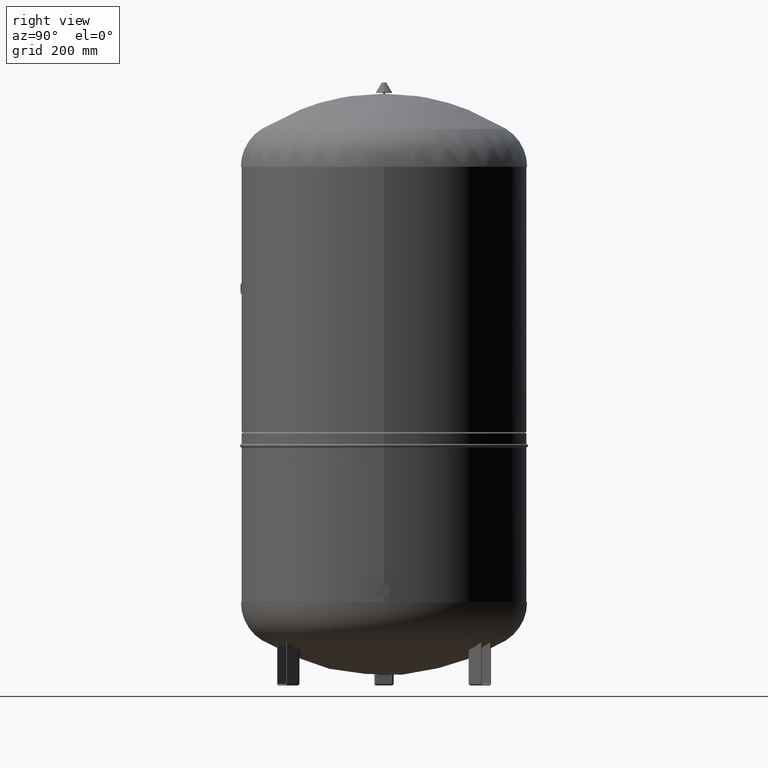
[diagram: clean part render]
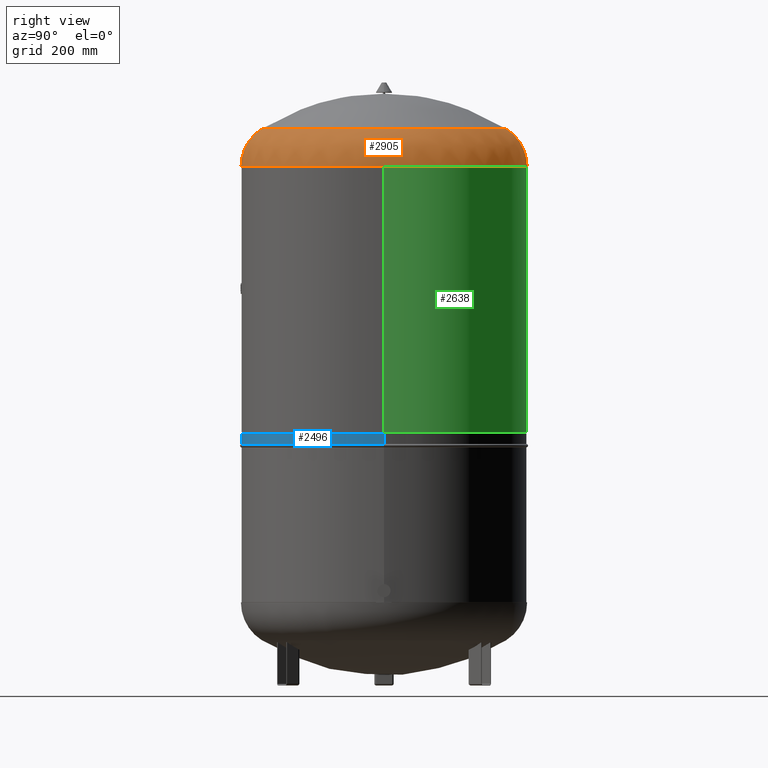
[diagram: same view with three faces highlighted in distinct colors, each labeled with its STEP entity id]
A machine part, right view with three faces highlighted in distinct colors.
Their STEP definitions:

[orange] entity #2905 — the highlighted face is a freeform B-spline surface patch.
#2788=CARTESIAN_POINT('',(370.0,1.062956E-014,1341.206120388130600));
#2789=VERTEX_POINT('',#2788);
#2796=CARTESIAN_POINT('',(0.0,-370.000000000000060,1341.206120388130600));
#2797=VERTEX_POINT('',#2796);
#2798=CARTESIAN_POINT('',(0.0,-3.468087E-014,1341.206120388130600));
#2799=DIRECTION('',(0.0,0.0,1.0));
#2800=DIRECTION('',(-1.0,0.0,0.0));
#2801=AXIS2_PLACEMENT_3D('',#2798,#2799,#2800);
#2802=CIRCLE('',#2801,370.0);
#2803=EDGE_CURVE('',#2797,#2789,#2802,.T.);
#2815=CARTESIAN_POINT('',(-1.702203E-014,139.000000000000060,1341.206120388130300));
#2816=CARTESIAN_POINT('',(-1.702203E-014,139.000000000000060,1456.706120388130300));
#2817=CARTESIAN_POINT('',(-3.116623E-014,254.500000000000000,1456.706120388130300));
#2818=CARTESIAN_POINT('',(-4.531044E-014,370.0,1456.706120388130300));
#2819=CARTESIAN_POINT('',(-4.531044E-014,369.999999999999940,1341.206120388130300));
#2820=CARTESIAN_POINT('',(-139.000000000000090,139.0,1341.206120388130300));
#2821=CARTESIAN_POINT('',(-139.000000000000060,139.0,1456.706120388130300));
#2822=CARTESIAN_POINT('',(-254.500000000000000,254.499999999999860,1456.706120388130300));
#2823=CARTESIAN_POINT('',(-370.0,369.999999999999890,1456.706120388130300));
#2824=CARTESIAN_POINT('',(-370.0,369.999999999999890,1341.206120388130300));
#2825=CARTESIAN_POINT('',(-139.000000000000090,-5.170290E-014,1341.206120388130300));
#2826=CARTESIAN_POINT('',(-139.000000000000060,-3.048590E-014,1456.706120388130300));
#2827=CARTESIAN_POINT('',(-254.500000000000000,-4.463010E-014,1456.706120388130300));
#2828=CARTESIAN_POINT('',(-370.0,-5.877430E-014,1456.706120388130300));
#2829=CARTESIAN_POINT('',(-370.0,-7.999131E-014,1341.206120388130300));
#2830=CARTESIAN_POINT('',(-139.000000000000030,-139.000000000000110,1341.206120388130300));
#2831=CARTESIAN_POINT('',(-139.0,-139.000000000000060,1456.706120388130300));
#2832=CARTESIAN_POINT('',(-254.499999999999910,-254.500000000000000,1456.706120388130300));
#2833=CARTESIAN_POINT('',(-369.999999999999890,-370.0,1456.706120388130300));
#2834=CARTESIAN_POINT('',(-369.999999999999890,-370.0,1341.206120388130300));
#2835=CARTESIAN_POINT('',(1.702203E-014,-139.000000000000110,1341.206120388130300));
#2836=CARTESIAN_POINT('',(1.702203E-014,-139.000000000000060,1456.706120388130300));
#2837=CARTESIAN_POINT('',(3.116623E-014,-254.500000000000000,1456.706120388130300));
#2838=CARTESIAN_POINT('',(4.531044E-014,-370.0,1456.706120388130300));
#2839=CARTESIAN_POINT('',(4.531044E-014,-370.000000000000060,1341.206120388130300));
#2840=CARTESIAN_POINT('',(139.000000000000090,-139.000000000000090,1341.206120388130300));
#2841=CARTESIAN_POINT('',(139.000000000000060,-139.000000000000030,1456.706120388130300));
#2842=CARTESIAN_POINT('',(254.500000000000000,-254.499999999999910,1456.706120388130300));
#2843=CARTESIAN_POINT('',(370.0,-369.999999999999890,1456.706120388130300));
#2844=CARTESIAN_POINT('',(370.0,-369.999999999999890,1341.206120388130300));
#2845=CARTESIAN_POINT('',(139.000000000000090,-1.765884E-014,1341.206120388130300));
#2846=CARTESIAN_POINT('',(139.000000000000060,3.558161E-015,1456.706120388130300));
#2847=CARTESIAN_POINT('',(254.500000000000000,1.770236E-014,1456.706120388130300));
#2848=CARTESIAN_POINT('',(370.0,3.184657E-014,1456.706120388130300));
#2849=CARTESIAN_POINT('',(370.0,1.062956E-014,1341.206120388130300));
#2850=CARTESIAN_POINT('',(139.000000000000030,139.000000000000030,1341.206120388130300));
#2851=CARTESIAN_POINT('',(139.0,139.000000000000030,1456.706120388130300));
#2852=CARTESIAN_POINT('',(254.499999999999910,254.500000000000000,1456.706120388130300));
#2853=CARTESIAN_POINT('',(369.999999999999890,370.0,1456.706120388130300));
#2854=CARTESIAN_POINT('',(369.999999999999890,369.999999999999890,1341.206120388130300));
#2855=CARTESIAN_POINT('',(-1.702203E-014,139.000000000000060,1341.206120388130300));
#2856=CARTESIAN_POINT('',(-1.702203E-014,139.000000000000060,1456.706120388130300));
#2857=CARTESIAN_POINT('',(-3.116623E-014,254.500000000000000,1456.706120388130300));
#2858=CARTESIAN_POINT('',(-4.531044E-014,370.0,1456.706120388130300));
#2859=CARTESIAN_POINT('',(-4.531044E-014,369.999999999999940,1341.206120388130300));
#2867=(BOUNDED_SURFACE()B_SPLINE_SURFACE(2,2,((#2815,#2820,#2825,#2830,#2835,#2840,#2845,#2850,#2855),(#2816,#2821,#2826,#2831,#2836,#2841,#2846,#2851,#2856),(#2817,#2822,#2827,#2832,#2837,#2842,#2847,#2852,#2857),(#2818,#2823,#2828,#2833,#2838,#2843,#2848,#2853,#2858),(#2819,#2824,#2829,#2834,#2839,#2844,#2849,#2854,#2859)),.UNSPECIFIED.,.F.,.T.,.U.)B_SPLINE_SURFACE_WITH_KNOTS((3,2,3),(3,2,2,2,3),(-3.141592653589794,-1.570796326794897,5.884666E-016),(0.0,1.570796326794897,3.141592653589793,4.712388980384690,6.283185307179586),.UNSPECIFIED.)GEOMETRIC_REPRESENTATION_ITEM()RATIONAL_B_SPLINE_SURFACE(((1.0,0.707106781186548,1.0,0.707106781186548,1.0,0.707106781186548,1.0,0.707106781186548,1.0),(0.707106781186545,0.499999999999998,0.707106781186545,0.499999999999998,0.707106781186545,0.499999999999998,0.707106781186545,0.499999999999998,0.707106781186545),(1.0,0.707106781186548,1.0,0.707106781186548,1.0,0.707106781186548,1.0,0.707106781186548,1.0),(0.707106781186545,0.499999999999999,0.707106781186545,0.499999999999999,0.707106781186545,0.499999999999999,0.707106781186545,0.499999999999999,0.707106781186545),(1.0,0.707106781186548,1.0,0.707106781186548,1.0,0.707106781186548,1.0,0.707106781186548,1.0)))REPRESENTATION_ITEM('')SURFACE());
#2868=CARTESIAN_POINT('',(0.0,-315.931034482758610,1439.014494274920500));
#2869=VERTEX_POINT('',#2868);
#2870=CARTESIAN_POINT('',(0.0,-254.500000000000060,1341.206120388130300));
#2871=DIRECTION('',(-1.0,0.0,0.0));
#2872=DIRECTION('',(0.0,-1.0,0.0));
#2873=AXIS2_PLACEMENT_3D('',#2870,#2871,#2872);
#2874=CIRCLE('',#2873,115.500000000000000);
#2875=EDGE_CURVE('',#2797,#2869,#2874,.T.);
#2876=ORIENTED_EDGE('',*,*,#2875,.F.);
#2877=ORIENTED_EDGE('',*,*,#2803,.T.);
#2878=CARTESIAN_POINT('',(-4.531044E-014,369.999999999999940,1341.206120388130300));
#2879=VERTEX_POINT('',#2878);
#2880=CARTESIAN_POINT('',(0.0,-3.468087E-014,1341.206120388130600));
#2881=DIRECTION('',(0.0,0.0,1.0));
#2882=DIRECTION('',(-1.0,0.0,0.0));
#2883=AXIS2_PLACEMENT_3D('',#2880,#2881,#2882);
#2884=CIRCLE('',#2883,370.0);
#2885=EDGE_CURVE('',#2789,#2879,#2884,.T.);
#2886=ORIENTED_EDGE('',*,*,#2885,.T.);
#2887=CARTESIAN_POINT('',(-3.868912E-014,315.931034482758610,1439.014494274920300));
#2888=VERTEX_POINT('',#2887);
#2889=CARTESIAN_POINT('',(-3.116623E-014,254.500000000000000,1341.206120388130300));
#2890=DIRECTION('',(1.0,0.0,0.0));
#2891=DIRECTION('',(0.0,1.0,0.0));
#2892=AXIS2_PLACEMENT_3D('',#2889,#2890,#2891);
#2893=CIRCLE('',#2892,115.500000000000000);
#2894=EDGE_CURVE('',#2879,#2888,#2893,.T.);
#2895=ORIENTED_EDGE('',*,*,#2894,.T.);
#2896=CARTESIAN_POINT('',(0.0,-1.671377E-014,1439.014494274920500));
#2897=DIRECTION('',(0.0,0.0,1.0));
#2898=DIRECTION('',(-1.0,0.0,0.0));
#2899=AXIS2_PLACEMENT_3D('',#2896,#2897,#2898);
#2900=CIRCLE('',#2899,315.931034482758610);
#2901=EDGE_CURVE('',#2869,#2888,#2900,.T.);
#2902=ORIENTED_EDGE('',*,*,#2901,.F.);
#2903=EDGE_LOOP('',(#2876,#2877,#2886,#2895,#2902));
#2904=FACE_OUTER_BOUND('',#2903,.T.);
#2905=ADVANCED_FACE('',(#2904),#2867,.T.);

[blue] entity #2496 — the highlighted cylindrical surface (partial cylindrical patch) has radius 370 mm, axis along (0, 0, 1).
#2430=CARTESIAN_POINT('',(369.999999999999720,0.0,651.500000000000000));
#2431=VERTEX_POINT('',#2430);
#2447=CARTESIAN_POINT('',(-369.999999999999720,-4.531044E-014,651.500000000000000));
#2448=VERTEX_POINT('',#2447);
#2455=CARTESIAN_POINT('',(-8.273070E-017,0.0,651.500000000000000));
#2456=DIRECTION('',(0.0,0.0,1.0));
#2457=DIRECTION('',(1.0,0.0,0.0));
#2458=AXIS2_PLACEMENT_3D('',#2455,#2456,#2457);
#2459=CIRCLE('',#2458,369.999999999999720);
#2460=EDGE_CURVE('',#2448,#2431,#2459,.T.);
#2465=CARTESIAN_POINT('',(-4.030167E-016,0.0,637.950000000000050));
#2466=DIRECTION('',(2.363734E-017,0.0,1.0));
#2467=DIRECTION('',(1.0,0.0,0.0));
#2468=AXIS2_PLACEMENT_3D('',#2465,#2466,#2467);
#2469=CYLINDRICAL_SURFACE('',#2468,369.999999999999720);
#2470=CARTESIAN_POINT('',(369.999999999999720,0.0,624.399999999999980));
#2471=VERTEX_POINT('',#2470);
#2472=CARTESIAN_POINT('',(369.999999999999720,0.0,651.500000000000000));
#2473=DIRECTION('',(0.0,0.0,-1.0));
#2474=VECTOR('',#2473,27.100000000000023);
#2475=LINE('',#2472,#2474);
#2476=EDGE_CURVE('',#2431,#2471,#2475,.T.);
#2477=ORIENTED_EDGE('',*,*,#2476,.F.);
#2478=ORIENTED_EDGE('',*,*,#2460,.F.);
#2479=CARTESIAN_POINT('',(-369.999999999999720,-4.531044E-014,624.400000000000090));
#2480=VERTEX_POINT('',#2479);
#2481=CARTESIAN_POINT('',(-369.999999999999720,-4.531044E-014,651.500000000000000));
#2482=DIRECTION('',(0.0,0.0,-1.0));
#2483=VECTOR('',#2482,27.099999999999909);
#2484=LINE('',#2481,#2483);
#2485=EDGE_CURVE('',#2448,#2480,#2484,.T.);
#2486=ORIENTED_EDGE('',*,*,#2485,.T.);
#2487=CARTESIAN_POINT('',(-7.233027E-016,0.0,624.399999999999980));
#2488=DIRECTION('',(0.0,0.0,1.0));
#2489=DIRECTION('',(1.0,0.0,0.0));
#2490=AXIS2_PLACEMENT_3D('',#2487,#2488,#2489);
#2491=CIRCLE('',#2490,369.999999999999720);
#2492=EDGE_CURVE('',#2480,#2471,#2491,.T.);
#2493=ORIENTED_EDGE('',*,*,#2492,.T.);
#2494=EDGE_LOOP('',(#2477,#2478,#2486,#2493));
#2495=FACE_OUTER_BOUND('',#2494,.T.);
#2496=ADVANCED_FACE('',(#2495),#2469,.T.);

[green] entity #2638 — the highlighted cylindrical surface (partial cylindrical patch) has radius 370 mm, axis along (0, 0, 1).
#2568=CARTESIAN_POINT('',(370.0,0.0,1341.000000000000200));
#2569=VERTEX_POINT('',#2568);
#2570=CARTESIAN_POINT('',(369.999999999999890,0.0,655.0));
#2571=VERTEX_POINT('',#2570);
#2572=CARTESIAN_POINT('',(370.0,0.0,1341.000000000000200));
#2573=DIRECTION('',(0.0,0.0,-1.0));
#2574=VECTOR('',#2573,686.000000000000230);
#2575=LINE('',#2572,#2574);
#2576=EDGE_CURVE('',#2569,#2571,#2575,.T.);
#2578=CARTESIAN_POINT('',(-370.0,-4.531044E-014,1341.000000000000200));
#2579=VERTEX_POINT('',#2578);
#2587=CARTESIAN_POINT('',(-370.0,-4.531044E-014,655.0));
#2588=VERTEX_POINT('',#2587);
#2589=CARTESIAN_POINT('',(-370.0,-4.531044E-014,1341.000000000000200));
#2590=DIRECTION('',(0.0,0.0,-1.0));
#2591=VECTOR('',#2590,686.000000000000230);
#2592=LINE('',#2589,#2591);
#2593=EDGE_CURVE('',#2579,#2588,#2592,.T.);
#2611=CARTESIAN_POINT('',(1.668796E-014,0.0,1341.000000000000200));
#2612=DIRECTION('',(0.0,0.0,1.0));
#2613=DIRECTION('',(1.0,0.0,0.0));
#2614=AXIS2_PLACEMENT_3D('',#2611,#2612,#2613);
#2615=CIRCLE('',#2614,370.0);
#2616=EDGE_CURVE('',#2569,#2579,#2615,.T.);
#2621=CARTESIAN_POINT('',(1.668796E-014,0.0,1361.250000000000000));
#2622=DIRECTION('',(0.0,0.0,1.0));
#2623=DIRECTION('',(1.0,0.0,0.0));
#2624=AXIS2_PLACEMENT_3D('',#2621,#2622,#2623);
#2625=CYLINDRICAL_SURFACE('',#2624,370.0);
#2626=ORIENTED_EDGE('',*,*,#2576,.T.);
#2627=CARTESIAN_POINT('',(0.0,0.0,655.0));
#2628=DIRECTION('',(0.0,0.0,1.0));
#2629=DIRECTION('',(1.0,0.0,0.0));
#2630=AXIS2_PLACEMENT_3D('',#2627,#2628,#2629);
#2631=CIRCLE('',#2630,369.999999999999890);
#2632=EDGE_CURVE('',#2571,#2588,#2631,.T.);
#2633=ORIENTED_EDGE('',*,*,#2632,.T.);
#2634=ORIENTED_EDGE('',*,*,#2593,.F.);
#2635=ORIENTED_EDGE('',*,*,#2616,.F.);
#2636=EDGE_LOOP('',(#2626,#2633,#2634,#2635));
#2637=FACE_OUTER_BOUND('',#2636,.T.);
#2638=ADVANCED_FACE('',(#2637),#2625,.T.);